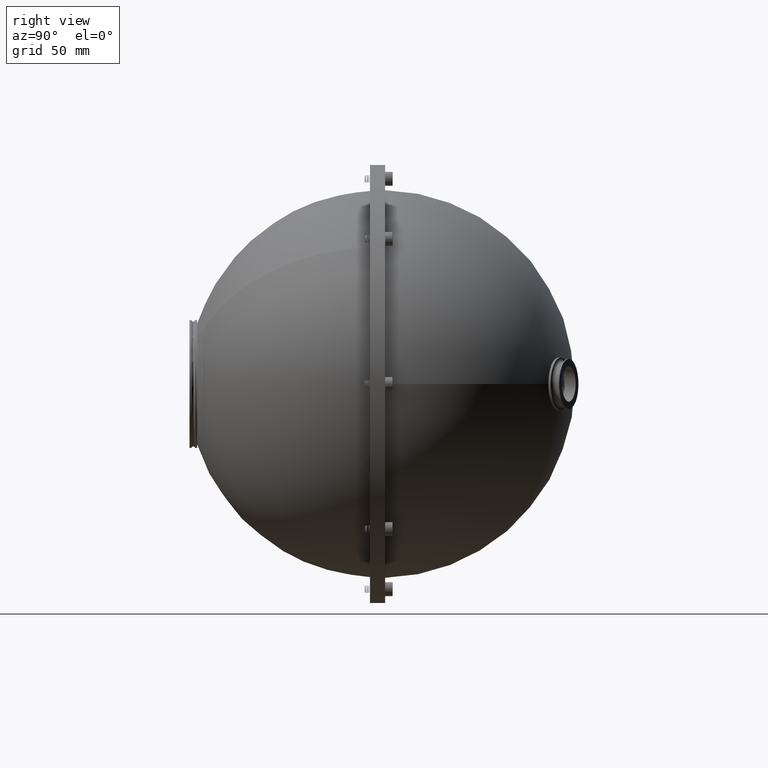
[diagram: clean part render]
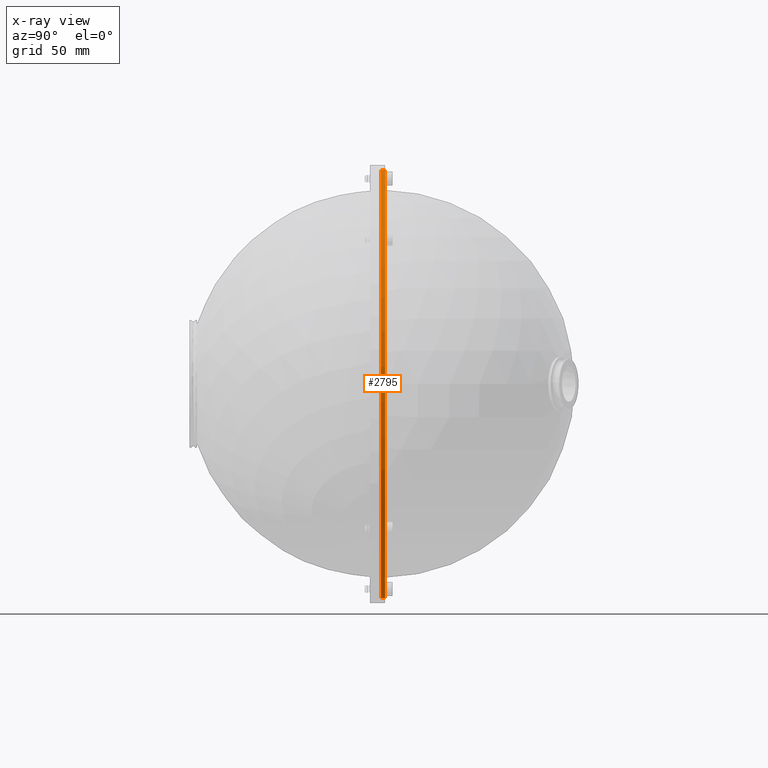
[diagram: x-ray — body ghosted, one internal face saturated and labeled with its STEP entity id]
A machine part, right view, then the same camera in x-ray: the body is ghosted and one INTERNAL B-rep face — a face not visible from any outside direction — is saturated and labeled: STEP entity #2795.
In plain terms, the highlighted cylindrical surface (partial cylindrical patch) has radius 85 mm, axis along (0, -1, 0).
Its self-contained STEP definition (entity closure, byte-faithful):
#14 = ORIENTED_EDGE ( 'NONE', *, *, #2756, .F. ) ;
#28 = DIRECTION ( 'NONE',  ( 0.000000000000000000, -1.000000000000000000, 0.000000000000000000 ) ) ;
#246 = LINE ( 'NONE', #2707, #4479 ) ;
#447 = DIRECTION ( 'NONE',  ( 0.000000000000000000, 0.000000000000000000, -1.000000000000000000 ) ) ;
#542 = VERTEX_POINT ( 'NONE', #5448 ) ;
#665 = VERTEX_POINT ( 'NONE', #5683 ) ;
#753 = CARTESIAN_POINT ( 'NONE',  ( 8.484018949608318039, -17.91086588718419748, 85.00000000000001421 ) ) ;
#902 = ORIENTED_EDGE ( 'NONE', *, *, #7282, .T. ) ;
#982 = CARTESIAN_POINT ( 'NONE',  ( 8.484018949608307381, -17.91086588718419748, -85.00000000000001421 ) ) ;
#1228 = DIRECTION ( 'NONE',  ( 0.000000000000000000, 0.000000000000000000, -1.000000000000000000 ) ) ;
#2640 = CARTESIAN_POINT ( 'NONE',  ( 8.484018949608307381, -17.91086588718419748, 0.000000000000000000 ) ) ;
#2707 = CARTESIAN_POINT ( 'NONE',  ( 8.484018949608318039, -16.21086588718419819, 85.00000000000001421 ) ) ;
#2756 = EDGE_CURVE ( 'NONE', #3459, #4458, #6357, .T. ) ;
#2795 = ADVANCED_FACE ( 'NONE', ( #7555 ), #5555, .T. ) ;
#2913 = CARTESIAN_POINT ( 'NONE',  ( 8.484018949608307381, -16.21086588718419819, 0.000000000000000000 ) ) ;
#3118 = EDGE_CURVE ( 'NONE', #542, #3459, #4140, .T. ) ;
#3136 = CARTESIAN_POINT ( 'NONE',  ( 8.484018949608307381, -16.21086588718419819, 0.000000000000000000 ) ) ;
#3207 = VECTOR ( 'NONE', #6670, 1000.000000000000000 ) ;
#3459 = VERTEX_POINT ( 'NONE', #982 ) ;
#3855 = CIRCLE ( 'NONE', #4611, 85.00000000000001421 ) ;
#3907 = ORIENTED_EDGE ( 'NONE', *, *, #3118, .F. ) ;
#4140 = LINE ( 'NONE', #7343, #3207 ) ;
#4188 = ORIENTED_EDGE ( 'NONE', *, *, #6936, .T. ) ;
#4458 = VERTEX_POINT ( 'NONE', #753 ) ;
#4479 = VECTOR ( 'NONE', #5126, 1000.000000000000000 ) ;
#4585 = AXIS2_PLACEMENT_3D ( 'NONE', #2640, #5060, #4974 ) ;
#4611 = AXIS2_PLACEMENT_3D ( 'NONE', #2913, #5333, #447 ) ;
#4974 = DIRECTION ( 'NONE',  ( 0.000000000000000000, 0.000000000000000000, -1.000000000000000000 ) ) ;
#5060 = DIRECTION ( 'NONE',  ( 0.000000000000000000, -1.000000000000000000, 0.000000000000000000 ) ) ;
#5126 = DIRECTION ( 'NONE',  ( 0.000000000000000000, -1.000000000000000000, 0.000000000000000000 ) ) ;
#5216 = AXIS2_PLACEMENT_3D ( 'NONE', #3136, #28, #1228 ) ;
#5333 = DIRECTION ( 'NONE',  ( 0.000000000000000000, -1.000000000000000000, 0.000000000000000000 ) ) ;
#5448 = CARTESIAN_POINT ( 'NONE',  ( 8.484018949608307381, -16.21086588718419819, -85.00000000000001421 ) ) ;
#5555 = CYLINDRICAL_SURFACE ( 'NONE', #5216, 85.00000000000001421 ) ;
#5683 = CARTESIAN_POINT ( 'NONE',  ( 8.484018949608318039, -16.21086588718419819, 85.00000000000001421 ) ) ;
#6357 = CIRCLE ( 'NONE', #4585, 85.00000000000001421 ) ;
#6447 = EDGE_LOOP ( 'NONE', ( #902, #4188, #14, #3907 ) ) ;
#6670 = DIRECTION ( 'NONE',  ( 0.000000000000000000, -1.000000000000000000, 0.000000000000000000 ) ) ;
#6936 = EDGE_CURVE ( 'NONE', #665, #4458, #246, .T. ) ;
#7282 = EDGE_CURVE ( 'NONE', #542, #665, #3855, .T. ) ;
#7343 = CARTESIAN_POINT ( 'NONE',  ( 8.484018949608307381, -16.21086588718419819, -85.00000000000001421 ) ) ;
#7555 = FACE_OUTER_BOUND ( 'NONE', #6447, .T. ) ;